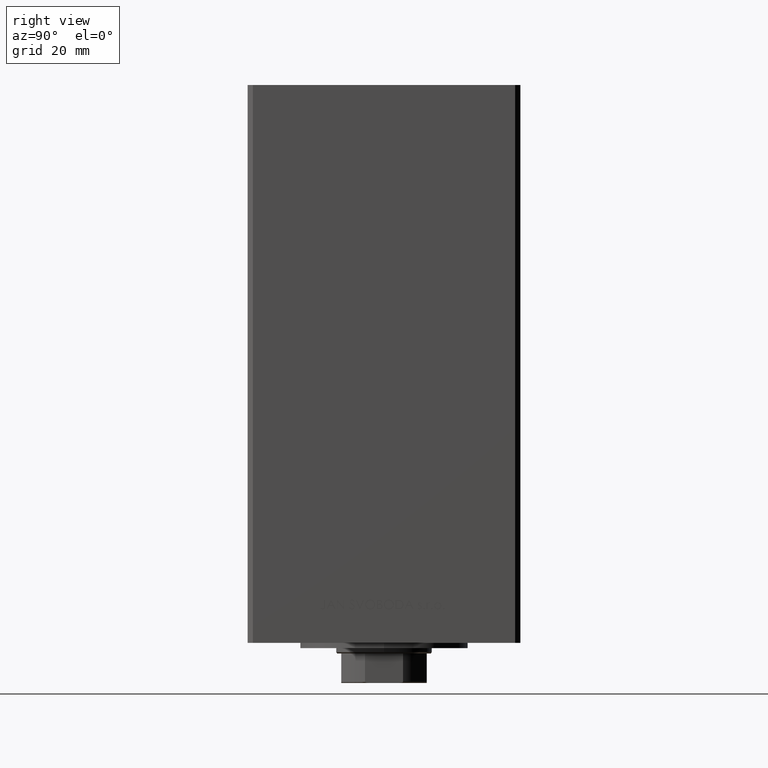
[diagram: clean part render]
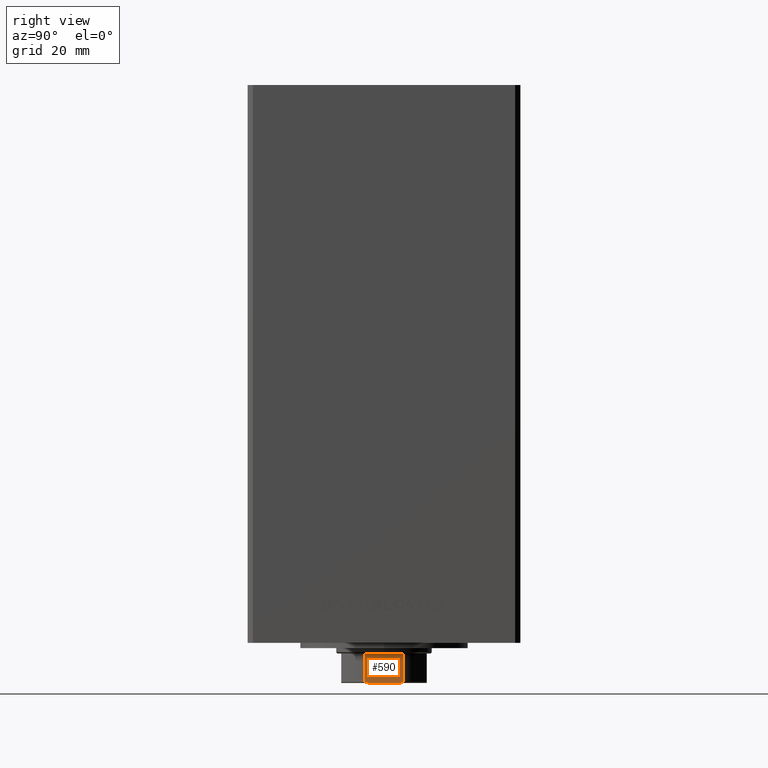
[diagram: same view with one face highlighted and labeled with its STEP entity id]
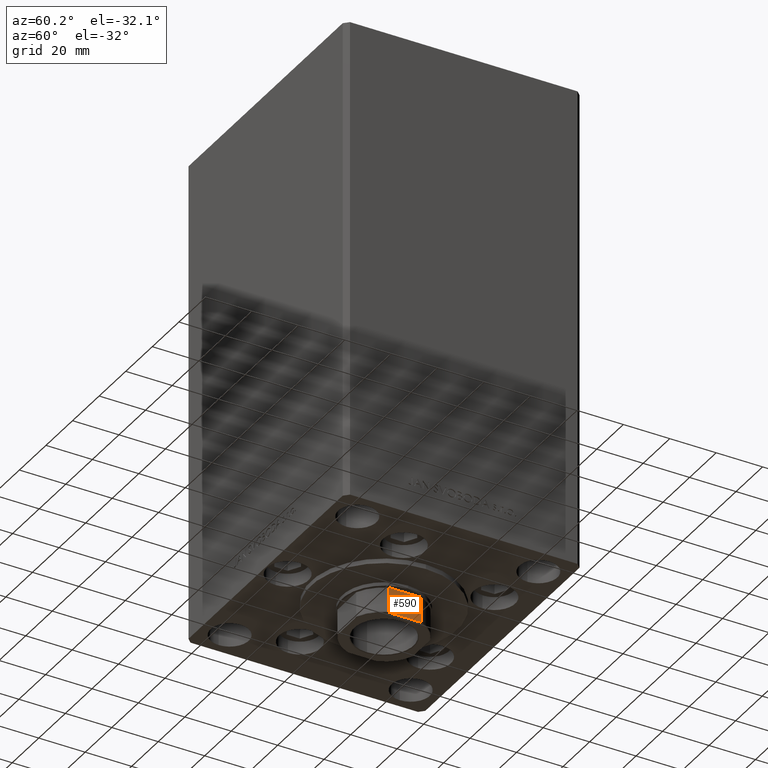
[diagram: same view with one face highlighted and labeled with its STEP entity id]
A machine part, right view. The second image highlights one B-rep face of the part: STEP entity #590.
A second angle (auxiliary view) of the same face is appended — the face is thin or edge-on in the first view.
In plain terms, the highlighted planar face has unit normal (-1, 0, 0).
Its self-contained STEP definition (entity closure, byte-faithful):
#590 = ADVANCED_FACE ( 'NONE', ( #9329 ), #47334, .F. ) ;
#1144 = CARTESIAN_POINT ( 'NONE',  ( -16.00000000000000355, 6.914158745692630781, 189.0081288012991081 ) ) ;
#2025 = DIRECTION ( 'NONE',  ( 1.084202172485504434E-16, -1.000000000000000000, 0.000000000000000000 ) ) ;
#2777 = CARTESIAN_POINT ( 'NONE',  ( -15.99999999999999645, -6.914772706552271941, 189.0076711345670901 ) ) ;
#2836 = VERTEX_POINT ( 'NONE', #21914 ) ;
#3428 = CARTESIAN_POINT ( 'NONE',  ( -16.00000000000000000, -5.744562646538033945, 189.2500000000000000 ) ) ;
#4384 = CARTESIAN_POINT ( 'NONE',  ( -16.00000000000000000, 5.744562646538029504, 189.2500000000000000 ) ) ;
#4901 = VERTEX_POINT ( 'NONE', #3428 ) ;
#5112 = CARTESIAN_POINT ( 'NONE',  ( -15.99999999999999645, 7.088723439378920688, 188.8155697653146490 ) ) ;
#5563 = VECTOR ( 'NONE', #11360, 1000.000000000000000 ) ;
#5619 = CARTESIAN_POINT ( 'NONE',  ( -16.00000000000000000, 7.088723439378916247, 188.7500000000000000 ) ) ;
#5760 = LINE ( 'NONE', #36073, #6632 ) ;
#6029 = CARTESIAN_POINT ( 'NONE',  ( -16.00000000000000000, -6.252433022027816811, 189.2306157152108597 ) ) ;
#6420 = VERTEX_POINT ( 'NONE', #48071 ) ;
#6632 = VECTOR ( 'NONE', #2025, 1000.000000000000000 ) ;
#6720 = EDGE_CURVE ( 'NONE', #2836, #4901, #21110, .T. ) ;
#7810 = VERTEX_POINT ( 'NONE', #17902 ) ;
#9329 = FACE_OUTER_BOUND ( 'NONE', #22267, .T. ) ;
#10490 = CARTESIAN_POINT ( 'NONE',  ( -16.00000000000000000, -6.746962372739938374, 189.1011068297690088 ) ) ;
#11360 = DIRECTION ( 'NONE',  ( -0.000000000000000000, -0.000000000000000000, 1.000000000000000000 ) ) ;
#14232 = CARTESIAN_POINT ( 'NONE',  ( -16.00000000000001066, -7.088723439378914470, 188.8153596029795551 ) ) ;
#14606 = CARTESIAN_POINT ( 'NONE',  ( -16.00000000000000000, 5.999698100839999881, 189.2500000000000000 ) ) ;
#14616 = EDGE_CURVE ( 'NONE', #32375, #4901, #5760, .T. ) ;
#15351 = CARTESIAN_POINT ( 'NONE',  ( -16.00000000000000000, 7.088723439378916247, -0.001000000000001000089 ) ) ;
#16567 = CARTESIAN_POINT ( 'NONE',  ( -16.00000000000000000, 6.744478600285202852, 189.1022542963853255 ) ) ;
#16787 = DIRECTION ( 'NONE',  ( 1.000000000000000000, 1.084202172485504557E-16, -0.000000000000000000 ) ) ;
#17085 = ORIENTED_EDGE ( 'NONE', *, *, #17586, .T. ) ;
#17285 = DIRECTION ( 'NONE',  ( -1.084202172485504557E-16, 1.000000000000000000, 0.000000000000000000 ) ) ;
#17586 = EDGE_CURVE ( 'NONE', #7810, #6420, #41209, .T. ) ;
#17902 = CARTESIAN_POINT ( 'NONE',  ( -16.00000000000000000, 7.088723439378911806, 178.2500000000000284 ) ) ;
#18812 = LINE ( 'NONE', #33972, #24566 ) ;
#19564 = LINE ( 'NONE', #15351, #5563 ) ;
#20046 = CARTESIAN_POINT ( 'NONE',  ( -16.00000000000000000, 6.620608993398004571, 189.1419184437072829 ) ) ;
#21110 = B_SPLINE_CURVE_WITH_KNOTS ( 'NONE', 3,
 ( #36593, #14232, #40567, #36829, #2777, #10490, #40803, #6029, #22173, #48262 ),
 .UNSPECIFIED., .F., .F.,
 ( 4, 2, 2, 2, 4 ),
 ( 0.000000000000000000, 0.0001928955851489210730, 0.0003857911702978421460, 0.0007715823405957272264, 0.001543164681191519939 ),
 .UNSPECIFIED. ) ;
#21453 = ORIENTED_EDGE ( 'NONE', *, *, #6720, .T. ) ;
#21914 = CARTESIAN_POINT ( 'NONE',  ( -16.00000000000000355, -7.088723439378912694, 188.7500000000000000 ) ) ;
#22173 = CARTESIAN_POINT ( 'NONE',  ( -16.00000000000000000, -5.999773414835120278, 189.2500000000000568 ) ) ;
#22267 = EDGE_LOOP ( 'NONE', ( #42786, #21453, #32387, #42209, #23263, #17085 ) ) ;
#22343 = DIRECTION ( 'NONE',  ( 1.084202172485504434E-16, -1.000000000000000000, 0.000000000000000000 ) ) ;
#23263 = ORIENTED_EDGE ( 'NONE', *, *, #46886, .F. ) ;
#23340 = CARTESIAN_POINT ( 'NONE',  ( -16.00000000000000000, 7.088723439378916247, 188.7500000000000000 ) ) ;
#24528 = CARTESIAN_POINT ( 'NONE',  ( -16.00000000000000000, 6.967626683430014900, 188.9712986014228591 ) ) ;
#24566 = VECTOR ( 'NONE', #30246, 1000.000000000000000 ) ;
#27970 = CARTESIAN_POINT ( 'NONE',  ( -16.00000000000000000, 15.99999999999999645, 189.2500000000000000 ) ) ;
#30040 = EDGE_CURVE ( 'NONE', #32375, #44857, #41384, .T. ) ;
#30246 = DIRECTION ( 'NONE',  ( -0.000000000000000000, -0.000000000000000000, 1.000000000000000000 ) ) ;
#32375 = VERTEX_POINT ( 'NONE', #34882 ) ;
#32387 = ORIENTED_EDGE ( 'NONE', *, *, #14616, .F. ) ;
#33006 = EDGE_CURVE ( 'NONE', #6420, #2836, #18812, .T. ) ;
#33972 = CARTESIAN_POINT ( 'NONE',  ( -16.00000000000000355, -7.088723439378912694, -0.001000000000001000089 ) ) ;
#34249 = CARTESIAN_POINT ( 'NONE',  ( -16.00000000000000000, 15.99999999999999645, 178.2500000000000000 ) ) ;
#34882 = CARTESIAN_POINT ( 'NONE',  ( -16.00000000000000000, 5.744562646538029504, 189.2500000000000000 ) ) ;
#36073 = CARTESIAN_POINT ( 'NONE',  ( -16.00000000000000000, 15.99999999999999645, 189.2500000000000000 ) ) ;
#36593 = CARTESIAN_POINT ( 'NONE',  ( -16.00000000000000355, -7.088723439378912694, 188.7500000000000000 ) ) ;
#36829 = CARTESIAN_POINT ( 'NONE',  ( -15.99999999999999645, -6.968475375953139483, 188.9705009019615147 ) ) ;
#39665 = CARTESIAN_POINT ( 'NONE',  ( -15.99999999999999645, 7.055793701721084332, 188.8756279161198393 ) ) ;
#40567 = CARTESIAN_POINT ( 'NONE',  ( -15.99999999999999645, -7.055665994487722692, 188.8756422470903829 ) ) ;
#40803 = CARTESIAN_POINT ( 'NONE',  ( -16.00000000000000000, -6.623467753754356480, 189.1410978819202171 ) ) ;
#41209 = LINE ( 'NONE', #34249, #43113 ) ;
#41384 = B_SPLINE_CURVE_WITH_KNOTS ( 'NONE', 3,
 ( #4384, #14606, #46139, #20046, #16567, #1144, #24528, #39665, #5112, #5619 ),
 .UNSPECIFIED., .F., .F.,
 ( 4, 2, 2, 2, 4 ),
 ( 0.000000000000000000, 0.0007561879621635655795, 0.001134281943245338611, 0.001323328933786245944, 0.001512375924327153277 ),
 .UNSPECIFIED. ) ;
#42209 = ORIENTED_EDGE ( 'NONE', *, *, #30040, .T. ) ;
#42786 = ORIENTED_EDGE ( 'NONE', *, *, #33006, .T. ) ;
#43113 = VECTOR ( 'NONE', #22343, 1000.000000000000000 ) ;
#43347 = AXIS2_PLACEMENT_3D ( 'NONE', #27970, #16787, #17285 ) ;
#44857 = VERTEX_POINT ( 'NONE', #23340 ) ;
#46139 = CARTESIAN_POINT ( 'NONE',  ( -15.99999999999999645, 6.251780714621280488, 189.2305079891186779 ) ) ;
#46886 = EDGE_CURVE ( 'NONE', #7810, #44857, #19564, .T. ) ;
#47334 = PLANE ( 'NONE',  #43347 ) ;
#48071 = CARTESIAN_POINT ( 'NONE',  ( -16.00000000000000355, -7.088723439378912694, 178.2500000000000284 ) ) ;
#48262 = CARTESIAN_POINT ( 'NONE',  ( -16.00000000000000000, -5.744562646538033945, 189.2500000000000000 ) ) ;